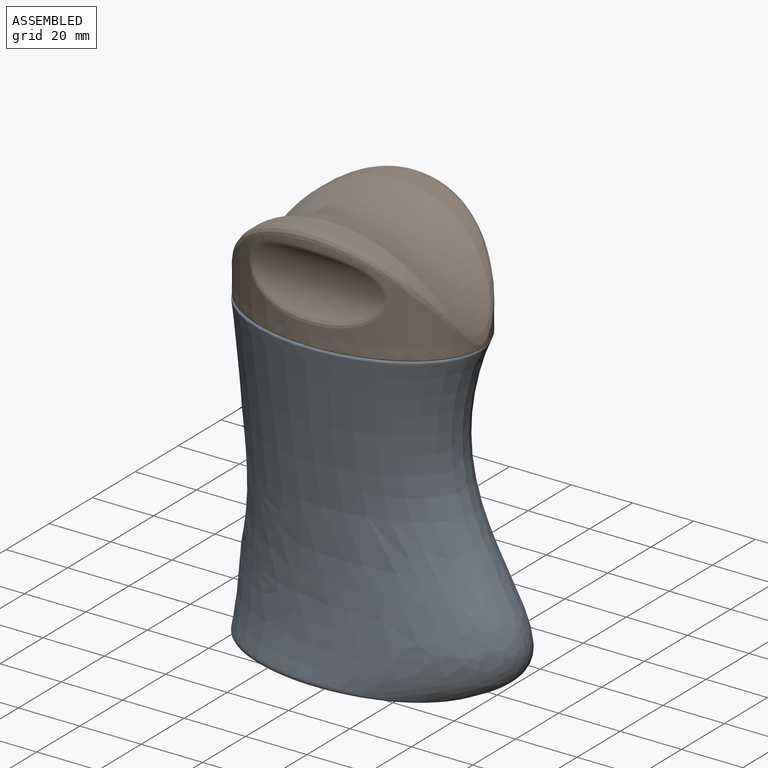
[diagram: assembled view]
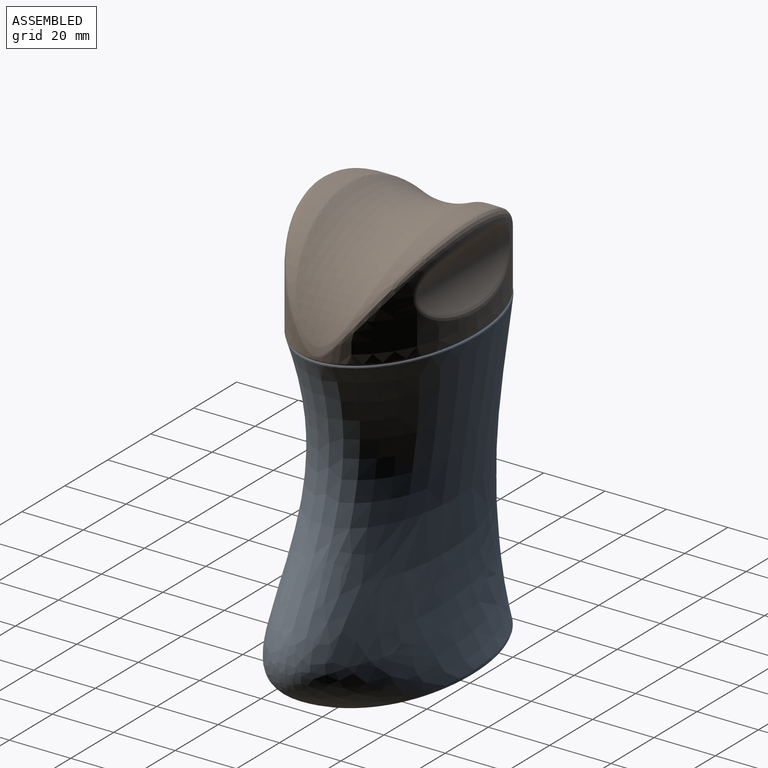
[diagram: assembled view, second angle]
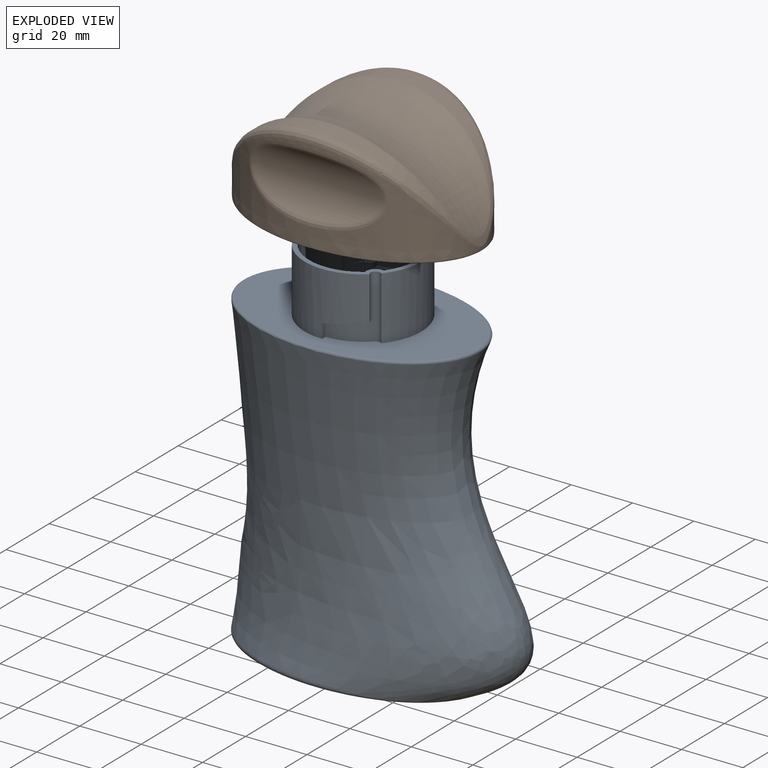
[diagram: exploded view]
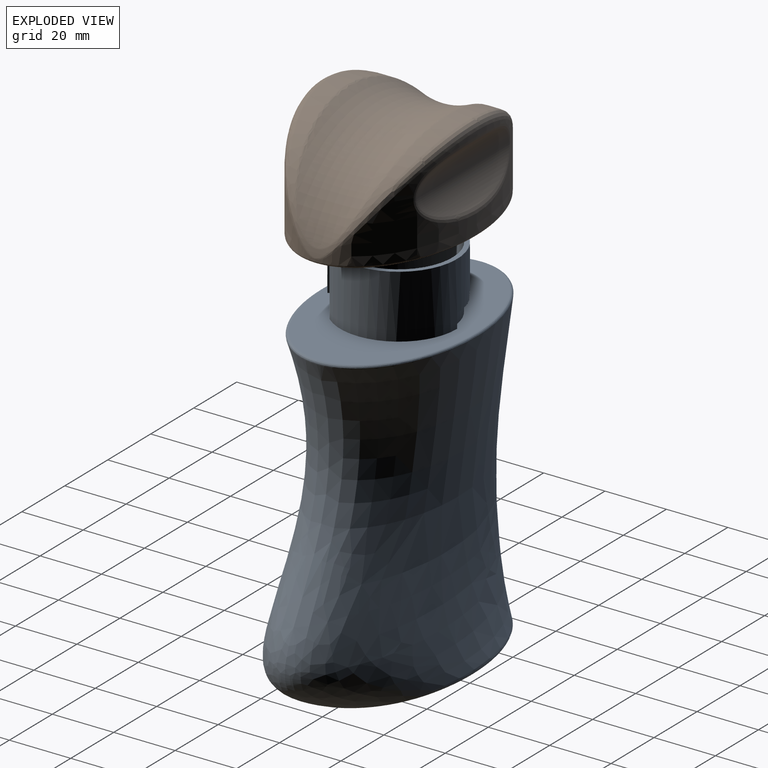
[diagram: exploded view, second angle]
ASSEMBLY  parts=2 mates=2
PART A: 40 faces, bbox 94.3x53.2x123.3 mm
  f0: plane 38.1x38.1mm, normal (0,0,1), area 178.9mm2, adj f3,f7,f8,f15,f23,f27,f28,f35
  f1: plane 1.61x0.92mm, normal (0,0,-1), area 1.5mm2, adj f2,f3,f9,f11
  f2: plane 10.02x5.43mm, normal (0.16,0,-0.99), area 17.2mm2, adj f1,f3,f10,f11
  f3: cylinder r=19.05mm len=31.35mm, axis (0,0,-1), area 1091.9mm2, adj f0,f1,f2,f5,f7,f8,f9,f10
  f4: plane 77.55x47.77mm, normal (0,0,-1), area 2918mm2, adj f19
  f5: plane 75.71x49.27mm, normal (0,0,1), area 1837.5mm2, adj f3,f7,f8,f9,f11,f12,f14,f15
  f6: offset ~102.7x92.55mm, area 18254.8mm2, adj f18,f19,f39
  f7: cylinder r=1.59mm len=20.57mm, axis (0,0,1), area 84.7mm2, adj f0,f3,f5,f13,f14,f15
  f8: cylinder r=1.59mm len=20.57mm, axis (0,0,1), area 84.7mm2, adj f0,f3,f5,f10,f11,f15
  f9: plane 4.7x1.59mm, normal (1,0,0), area 7.5mm2, adj f1,f3,f5,f11
  f10: plane 3.32x1.51mm, normal (0,0,-1), area 2.4mm2, adj f2,f3,f8,f11
  f11: cylinder r=17.46mm len=12.35mm, axis (0,0,-1), area 76.1mm2, adj f1,f2,f5,f8,f9,f10
  f12: plane 4.7x1.59mm, normal (-1,0,0), area 7.5mm2, adj f5,f14,f15,f17
  f13: plane 4.79x4.04mm, normal (0,0,-1), area 7.1mm2, adj f7,f14,f15,f16
  f14: cylinder r=17.46mm len=12.35mm, axis (0,0,-1), area 72.4mm2, adj f5,f7,f12,f13,f16,f17
  f15: cylinder r=19.05mm len=31.35mm, axis (0,0,-1), area 1095.6mm2, adj f0,f5,f7,f8,f12,f13,f16,f17
  f16: plane 1.78x1.58mm, normal (-1,0,0), area 2.8mm2, adj f13,f14,f15,f17
  f17: plane 8.31x3.69mm, normal (0,0,-1), area 13.7mm2, adj f12,f14,f15,f16
  f18: bspline ~77.09x50.74mm, area 272mm2, adj f5,f6
  f19: bspline ~79.52x50.76mm, area 451.4mm2, adj f4,f6
  f20: revolved ~52.92x23mm, area 911.9mm2, adj f39
  f21: plane 2.32x1.66mm, normal (0,0,1), area 3.7mm2, adj f22,f23,f29,f31
  f22: plane 10.04x5.83mm, normal (-0.16,0,0.99), area 16.9mm2, adj f21,f23,f28,f30,f31
  f23: cylinder r=17.53mm len=27.95mm, axis (0,0,-1), area 995.4mm2, adj f0,f21,f22,f25,f27,f28,f29
  f24: plane 77.56x47.78mm, normal (0,0,1), area 2918mm2, adj f26
  f25: plane 73.74x47.46mm, normal (0,0,-1), area 1832.7mm2, adj f23,f26,f27,f28,f29,f31,f32,f34
  f26: offset ~104.22x94.08mm, area 17215.9mm2, adj f24,f25,f38
  f27: cylinder r=3.11mm len=22.1mm, axis (0,0,1), area 107mm2, adj f0,f23,f25,f33,f34,f35
  f28: cylinder r=3.11mm len=22.1mm, axis (0,0,1), area 107.1mm2, adj f0,f22,f23,f25,f30,f31,f35
  f29: plane 7.75x1.59mm, normal (-1,0,0), area 12.3mm2, adj f21,f23,f25,f31
  f30: plane 0.74x0.55mm, normal (0,0,1), area 0mm2, adj f22,f28,f31
  f31: cylinder r=15.94mm len=12.79mm, axis (0,0,-1), area 118.6mm2, adj f21,f22,f25,f28,f29,f30
  f32: plane 7.75x1.59mm, normal (1,0,0), area 12.3mm2, adj f25,f34,f35,f37
  f33: plane 4.89x4.48mm, normal (0,0,1), area 6.9mm2, adj f27,f34,f35,f36
  f34: cylinder r=15.94mm len=12.79mm, axis (0,0,-1), area 117.5mm2, adj f25,f27,f32,f33,f36,f37
  f35: cylinder r=17.53mm len=27.95mm, axis (0,0,-1), area 996.7mm2, adj f0,f25,f27,f28,f32,f33,f36,f37
  f36: plane 1.74x1.58mm, normal (1,0,0), area 2.7mm2, adj f33,f34,f35,f37
  f37: plane 8.31x3.1mm, normal (0,0,1), area 13.5mm2, adj f32,f34,f35,f36
  f38: revolved ~54.23x22.21mm, area 891mm2, adj f26
  f39: bspline ~54.02x21.4mm, area 100mm2, adj f6,f20
PART B: 32 faces, bbox 104.4x53.1x45.2 mm
  f0: cylinder r=39.57mm len=77.72mm, axis (0,1,0), area 745.4mm2, adj f6,f7,f8,f9,f12,f13,f14
  f1: extruded ~77.72x30.36mm, area 1114.3mm2, adj f2,f10,f12,f13,f14,f22
  f2: extruded ~77.72x30.36mm, area 1115.1mm2, adj f1,f6,f7,f8,f11,f23
  f3: cylinder r=13.97mm len=43.05mm, axis (1,0,0), area 719mm2, adj f11
  f4: cylinder r=13.97mm len=43.05mm, axis (1,0,0), area 719.2mm2, adj f10
  f5: torus R=78.64mm, axis (0,-1,0), area 2444.1mm2, adj f9
  f6: bspline ~2.68x0.99mm, area 0.2mm2, adj f0,f2,f7
  f7: bspline ~77.71x32.35mm, area 339.6mm2, adj f0,f2,f6,f8
  f8: bspline ~3.69x1.37mm, area 0.2mm2, adj f0,f2,f7
  f9: bspline ~76.56x33.14mm, area 191.6mm2, adj f0,f5
  f10: bspline ~45.22x22.66mm, area 172.1mm2, adj f1,f4
  f11: bspline ~45.22x22.66mm, area 172.1mm2, adj f2,f3
  f12: bspline ~2.68x0.99mm, area 0.2mm2, adj f0,f1,f13
  f13: bspline ~77.68x32.35mm, area 339.6mm2, adj f0,f1,f12,f14
  f14: bspline ~3.69x1.37mm, area 0.2mm2, adj f0,f1,f13
  f15: plane 76.2x49.29mm, normal (0,0,-1), area 896.9mm2, adj f21,f22,f23,f24,f25,f26,f28,f29
  f16: cylinder r=17.46mm len=3.18mm, axis (0,0,1), area 8mm2, adj f18
  f17: cylinder r=17.46mm len=3.18mm, axis (0,0,1), area 8mm2, adj f19
  f18: cylinder r=1.59mm len=3.18mm, axis (0,1,0), area 19.7mm2, adj f16,f21
  f19: cylinder r=1.59mm len=3.18mm, axis (0,1,0), area 19.7mm2, adj f17,f21
  f20: plane 38.86x38.86mm, normal (0,0,-1), area 1186.2mm2, adj f21
  f21: cylinder r=19.43mm len=38.86mm, axis (0,0,1), area 2480.4mm2, adj f15,f18,f19,f20
  f22: bspline ~77.72x46.61mm, area 121.1mm2, adj f1,f15,f23
  f23: bspline ~77.72x46.61mm, area 121.1mm2, adj f2,f15,f22
  f24: extruded ~29.44x21.76mm, area 252.1mm2, adj f15,f25,f26,f27
  f25: extruded ~29.44x21.76mm, area 252.1mm2, adj f15,f24,f26,f27
  f26: cylinder r=22.61mm len=43.52mm, axis (0,0,-1), area 372.3mm2, adj f15,f24,f25,f27
  f27: plane 43.52x29.44mm, normal (0,0,-1), area 432.1mm2, adj f24,f25,f26
  f28: extruded ~29.44x21.76mm, area 252.1mm2, adj f15,f29,f30,f31
  f29: extruded ~29.44x21.76mm, area 252.1mm2, adj f15,f28,f30,f31
  f30: cylinder r=22.61mm len=43.52mm, axis (0,0,-1), area 372.3mm2, adj f15,f28,f29,f31
  f31: plane 43.52x29.44mm, normal (0,0,-1), area 432.1mm2, adj f28,f29,f30
PLACE A t=(-61,-3.88,-52.36)mm
PLACE B t=(-61,-3.88,-52.36)mm
MATE planar B.f15 <-> A.f5  axis (0,0,-1) through (-60.99,-28.52,47.72)mm
MATE cylindrical B.f21 <-> A.f3  axis (0,0,-1) through (-61,-3.88,47.72)mm
